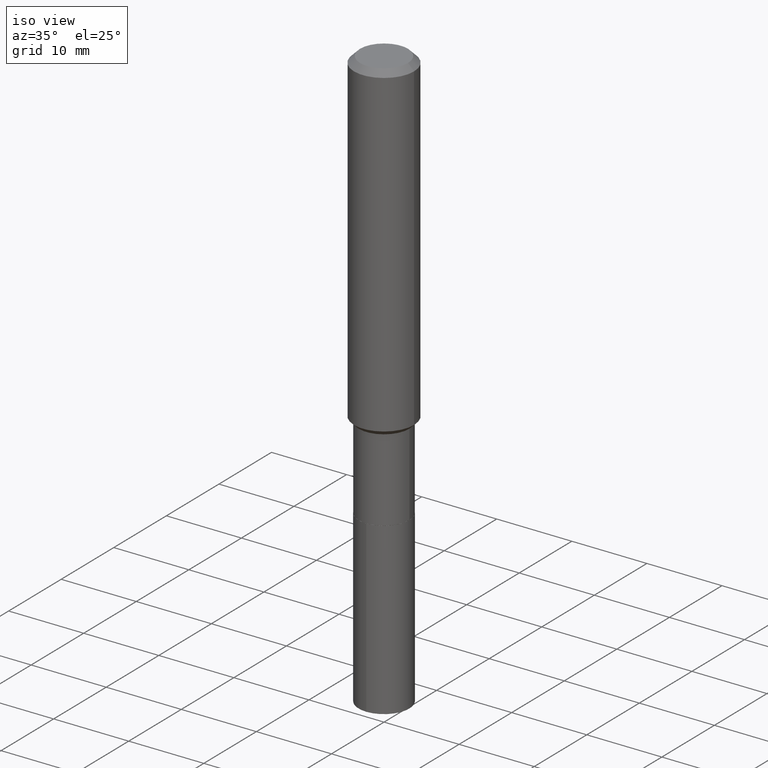
[diagram: clean part render]
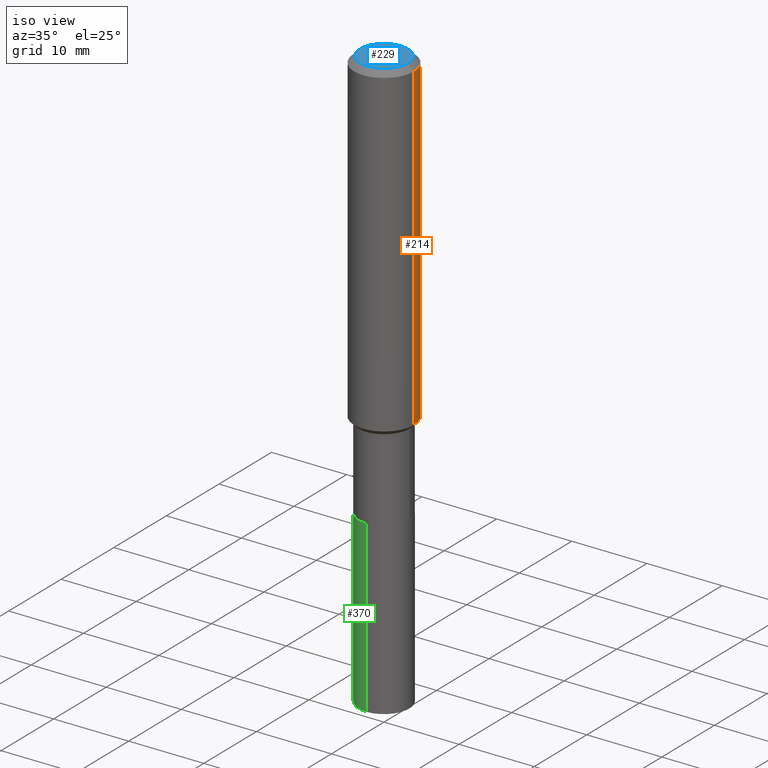
[diagram: same view with three faces highlighted in distinct colors, each labeled with its STEP entity id]
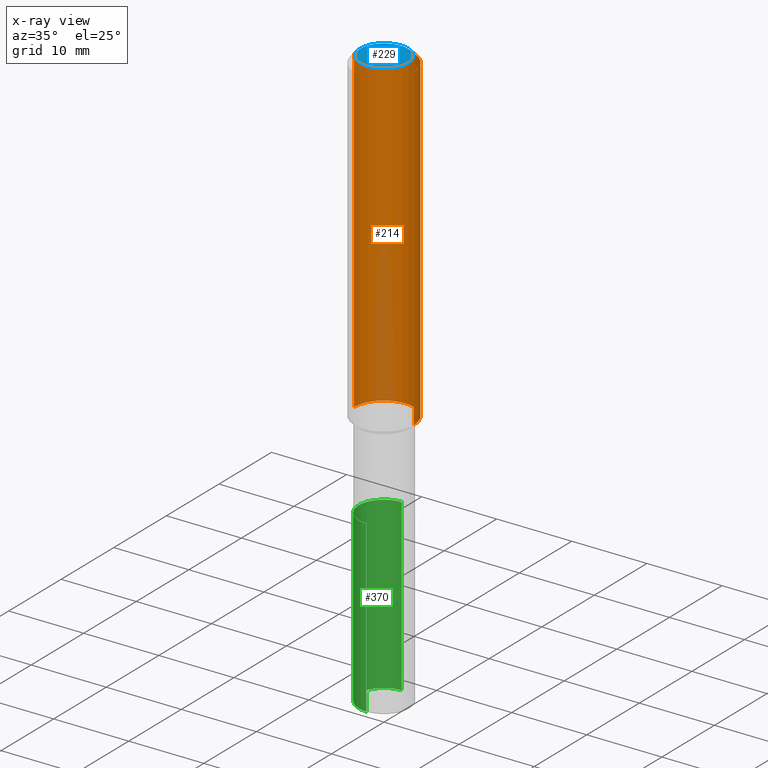
[diagram: x-ray of the same camera — body ghosted, the three highlighted faces saturated]
A machine part, iso view with three faces highlighted in distinct colors.
The next image is the same camera in x-ray (body ghosted, the three faces saturated) — at least one of them is partly hidden behind the body in this view.
Their STEP definitions:

[orange] entity #214 — the highlighted cylindrical surface (partial cylindrical patch) has radius 4.0005 mm, axis along (-0, 0, 1).
#5 = DIRECTION ( 'NONE',  ( -2.445468806185136597E-29, 3.491481338843145583E-15, 1.000000000000000000 ) ) ;
#8 = LINE ( 'NONE', #201, #425 ) ;
#18 = DIRECTION ( 'NONE',  ( -2.445468806185136597E-29, 3.491481338843145583E-15, 1.000000000000000000 ) ) ;
#22 = CARTESIAN_POINT ( 'NONE',  ( 7.703226739483228723E-31, -1.099816621735597661E-16, -0.03150000000000019451 ) ) ;
#51 = CIRCLE ( 'NONE', #75, 0.1575000000000001954 ) ;
#75 = AXIS2_PLACEMENT_3D ( 'NONE', #275, #18, #429 ) ;
#82 = DIRECTION ( 'NONE',  ( -2.445468806185136877E-29, 3.491481338843145188E-15, 1.000000000000000000 ) ) ;
#119 = LINE ( 'NONE', #316, #127 ) ;
#123 = DIRECTION ( 'NONE',  ( -2.445468806185136877E-29, 3.491481338843145188E-15, 1.000000000000000000 ) ) ;
#127 = VECTOR ( 'NONE', #82, 39.37007874015748143 ) ;
#162 = CARTESIAN_POINT ( 'NONE',  ( 0.1575000000000001954, -7.059949841207779867E-15, -1.707049999999999734 ) ) ;
#201 = CARTESIAN_POINT ( 'NONE',  ( -0.1575000000000000844, 1.119104808822158392E-15, -7.747322767151481189E-30 ) ) ;
#214 = ADVANCED_FACE ( 'NONE', ( #489 ), #379, .T. ) ;
#220 = CARTESIAN_POINT ( 'NONE',  ( 0.000000000000000000, 0.000000000000000000, 0.000000000000000000 ) ) ;
#232 = AXIS2_PLACEMENT_3D ( 'NONE', #220, #5, #453 ) ;
#250 = ORIENTED_EDGE ( 'NONE', *, *, #333, .T. ) ;
#256 = CARTESIAN_POINT ( 'NONE',  ( -0.1575000000000001954, -4.841028410650031628E-15, -1.707049999999999734 ) ) ;
#269 = CARTESIAN_POINT ( 'NONE',  ( 0.1575000000000000011, -1.209798283909146741E-15, -0.03150000000000019451 ) ) ;
#275 = CARTESIAN_POINT ( 'NONE',  ( 4.174537525598337128E-29, -5.960133219472190809E-15, -1.707049999999999734 ) ) ;
#279 = CARTESIAN_POINT ( 'NONE',  ( -0.1575000000000000011, -1.915952632000715952E-15, -0.03150000000000019451 ) ) ;
#288 = CIRCLE ( 'NONE', #350, 0.1575000000000000011 ) ;
#290 = EDGE_CURVE ( 'NONE', #464, #308, #8, .T. ) ;
#291 = DIRECTION ( 'NONE',  ( 1.000000000000000000, -6.982962677686265922E-15, 0.000000000000000000 ) ) ;
#308 = VERTEX_POINT ( 'NONE', #279 ) ;
#316 = CARTESIAN_POINT ( 'NONE',  ( 0.1575000000000000844, -1.099816621735587677E-15, 7.679978421878603638E-30 ) ) ;
#321 = ORIENTED_EDGE ( 'NONE', *, *, #471, .F. ) ;
#333 = EDGE_CURVE ( 'NONE', #436, #464, #51, .T. ) ;
#350 = AXIS2_PLACEMENT_3D ( 'NONE', #22, #413, #291 ) ;
#363 = ORIENTED_EDGE ( 'NONE', *, *, #411, .F. ) ;
#379 = CYLINDRICAL_SURFACE ( 'NONE', #232, 0.1575000000000000844 ) ;
#402 = VERTEX_POINT ( 'NONE', #269 ) ;
#411 = EDGE_CURVE ( 'NONE', #436, #402, #119, .T. ) ;
#413 = DIRECTION ( 'NONE',  ( -2.445468806185136597E-29, 3.491481338843145583E-15, 1.000000000000000000 ) ) ;
#425 = VECTOR ( 'NONE', #123, 39.37007874015748143 ) ;
#429 = DIRECTION ( 'NONE',  ( 1.000000000000000000, -6.982962677686265922E-15, 0.000000000000000000 ) ) ;
#436 = VERTEX_POINT ( 'NONE', #162 ) ;
#443 = ORIENTED_EDGE ( 'NONE', *, *, #290, .T. ) ;
#452 = EDGE_LOOP ( 'NONE', ( #250, #443, #321, #363 ) ) ;
#453 = DIRECTION ( 'NONE',  ( 1.000000000000000000, -6.982962677686267499E-15, 4.876176775795936353E-29 ) ) ;
#464 = VERTEX_POINT ( 'NONE', #256 ) ;
#471 = EDGE_CURVE ( 'NONE', #402, #308, #288, .T. ) ;
#489 = FACE_OUTER_BOUND ( 'NONE', #452, .T. ) ;

[blue] entity #229 — the highlighted planar face has unit normal (0, -0, -1).
#7 = VERTEX_POINT ( 'NONE', #442 ) ;
#10 = CIRCLE ( 'NONE', #234, 0.1260000000000000009 ) ;
#54 = ORIENTED_EDGE ( 'NONE', *, *, #457, .T. ) ;
#66 = DIRECTION ( 'NONE',  ( -2.445468806185136597E-29, 3.491481338843145583E-15, 1.000000000000000000 ) ) ;
#71 = ORIENTED_EDGE ( 'NONE', *, *, #463, .T. ) ;
#77 = DIRECTION ( 'NONE',  ( -1.000000000000000000, 6.982962677686265922E-15, -4.876176775795935793E-29 ) ) ;
#79 = PLANE ( 'NONE',  #264 ) ;
#87 = EDGE_LOOP ( 'NONE', ( #71, #54 ) ) ;
#102 = VERTEX_POINT ( 'NONE', #292 ) ;
#132 = DIRECTION ( 'NONE',  ( 1.000000000000000000, -6.982962677686265922E-15, 4.876281427513067258E-29 ) ) ;
#156 = DIRECTION ( 'NONE',  ( 2.438088387897960049E-29, -3.491481338843145188E-15, -1.000000000000000000 ) ) ;
#194 = CARTESIAN_POINT ( 'NONE',  ( -9.439721640706201686E-47, 1.347742071746726764E-32, 3.860086710912459732E-18 ) ) ;
#229 = ADVANCED_FACE ( 'NONE', ( #421 ), #79, .F. ) ;
#234 = AXIS2_PLACEMENT_3D ( 'NONE', #194, #348, #324 ) ;
#263 = CARTESIAN_POINT ( 'NONE',  ( -4.719860820353100843E-47, 6.738710358733633822E-33, 1.930043355456229866E-18 ) ) ;
#264 = AXIS2_PLACEMENT_3D ( 'NONE', #263, #156, #77 ) ;
#265 = CIRCLE ( 'NONE', #278, 0.1260000000000000009 ) ;
#278 = AXIS2_PLACEMENT_3D ( 'NONE', #281, #66, #132 ) ;
#281 = CARTESIAN_POINT ( 'NONE',  ( -9.439721640706201686E-47, 1.347742071746726764E-32, 3.860086710912459732E-18 ) ) ;
#292 = CARTESIAN_POINT ( 'NONE',  ( -0.1260000000000000009, 9.348441284752484904E-16, 3.860086710906114178E-18 ) ) ;
#324 = DIRECTION ( 'NONE',  ( 1.000000000000000000, -6.982962677686265922E-15, 4.876281427513067258E-29 ) ) ;
#348 = DIRECTION ( 'NONE',  ( -2.445468806185136597E-29, 3.491481338843145583E-15, 1.000000000000000000 ) ) ;
#421 = FACE_OUTER_BOUND ( 'NONE', #87, .T. ) ;
#442 = CARTESIAN_POINT ( 'NONE',  ( 0.1260000000000000009, -1.027466422270894443E-15, 3.860086710919128072E-18 ) ) ;
#457 = EDGE_CURVE ( 'NONE', #7, #102, #10, .T. ) ;
#463 = EDGE_CURVE ( 'NONE', #102, #7, #265, .T. ) ;

[green] entity #370 — the highlighted cylindrical surface (edge-blend (fillet) strip) has radius 3.3744 mm, axis along (-0, 0, 1).
#13 = VERTEX_POINT ( 'NONE', #254 ) ;
#16 = CARTESIAN_POINT ( 'NONE',  ( 5.295173606032675561E-29, -7.560104542997063911E-15, -2.165299999999999780 ) ) ;
#73 = CARTESIAN_POINT ( 'NONE',  ( 5.295173606032675561E-29, -7.560104542997063911E-15, -2.165299999999999780 ) ) ;
#92 = CARTESIAN_POINT ( 'NONE',  ( 7.477652234873619342E-29, -1.067688061661201906E-14, -3.057868993314555972 ) ) ;
#93 = ORIENTED_EDGE ( 'NONE', *, *, #247, .T. ) ;
#98 = AXIS2_PLACEMENT_3D ( 'NONE', #92, #314, #424 ) ;
#108 = LINE ( 'NONE', #302, #295 ) ;
#111 = LINE ( 'NONE', #113, #165 ) ;
#113 = CARTESIAN_POINT ( 'NONE',  ( 9.439560244573457240E-16, 0.1328499999999924186, -2.165300000000000669 ) ) ;
#115 = DIRECTION ( 'NONE',  ( -2.445165186319441374E-29, 3.491916139771791272E-15, 1.000000000000000000 ) ) ;
#125 = AXIS2_PLACEMENT_3D ( 'NONE', #73, #154, #184 ) ;
#126 = FACE_OUTER_BOUND ( 'NONE', #310, .T. ) ;
#139 = CARTESIAN_POINT ( 'NONE',  ( -9.276865917305455812E-16, -0.1328500000000106540, -3.057868993314555528 ) ) ;
#154 = DIRECTION ( 'NONE',  ( -2.445165186319441374E-29, 3.491916139771790878E-15, 1.000000000000000000 ) ) ;
#157 = DIRECTION ( 'NONE',  ( -2.445165186319441374E-29, 3.491916139771790878E-15, 1.000000000000000000 ) ) ;
#165 = VECTOR ( 'NONE', #115, 39.37007874015748143 ) ;
#166 = CIRCLE ( 'NONE', #98, 0.1328499999999999959 ) ;
#184 = DIRECTION ( 'NONE',  ( -6.982962677686265133E-15, -1.000000000000000000, 4.112680457153576388E-15 ) ) ;
#190 = EDGE_CURVE ( 'NONE', #13, #299, #349, .T. ) ;
#196 = ORIENTED_EDGE ( 'NONE', *, *, #221, .F. ) ;
#197 = AXIS2_PLACEMENT_3D ( 'NONE', #16, #157, #307 ) ;
#198 = CARTESIAN_POINT ( 'NONE',  ( 9.439560244573678122E-16, 0.1328499999999893100, -3.057868993314556416 ) ) ;
#221 = EDGE_CURVE ( 'NONE', #392, #13, #111, .T. ) ;
#247 = EDGE_CURVE ( 'NONE', #474, #299, #108, .T. ) ;
#254 = CARTESIAN_POINT ( 'NONE',  ( 9.439560244573678122E-16, 0.1328499999999924464, -2.165300000000000669 ) ) ;
#276 = ORIENTED_EDGE ( 'NONE', *, *, #190, .F. ) ;
#295 = VECTOR ( 'NONE', #373, 39.37007874015748143 ) ;
#299 = VERTEX_POINT ( 'NONE', #427 ) ;
#302 = CARTESIAN_POINT ( 'NONE',  ( -9.276865917305674721E-16, -0.1328500000000075454, -2.165299999999999336 ) ) ;
#307 = DIRECTION ( 'NONE',  ( -6.982962677686265133E-15, -1.000000000000000000, 4.112680457153576388E-15 ) ) ;
#310 = EDGE_LOOP ( 'NONE', ( #196, #334, #93, #276 ) ) ;
#314 = DIRECTION ( 'NONE',  ( -2.445165186319441374E-29, 3.491916139771790878E-15, 1.000000000000000000 ) ) ;
#334 = ORIENTED_EDGE ( 'NONE', *, *, #422, .T. ) ;
#349 = CIRCLE ( 'NONE', #125, 0.1328499999999999959 ) ;
#370 = ADVANCED_FACE ( 'NONE', ( #126 ), #460, .T. ) ;
#373 = DIRECTION ( 'NONE',  ( -2.445165186319441374E-29, 3.491916139771791272E-15, 1.000000000000000000 ) ) ;
#392 = VERTEX_POINT ( 'NONE', #198 ) ;
#422 = EDGE_CURVE ( 'NONE', #392, #474, #166, .T. ) ;
#424 = DIRECTION ( 'NONE',  ( -6.982962677686265133E-15, -1.000000000000000000, 4.112680457153576388E-15 ) ) ;
#427 = CARTESIAN_POINT ( 'NONE',  ( -9.276865917305674721E-16, -0.1328500000000075454, -2.165299999999999336 ) ) ;
#460 = CYLINDRICAL_SURFACE ( 'NONE', #197, 0.1328499999999999959 ) ;
#474 = VERTEX_POINT ( 'NONE', #139 ) ;